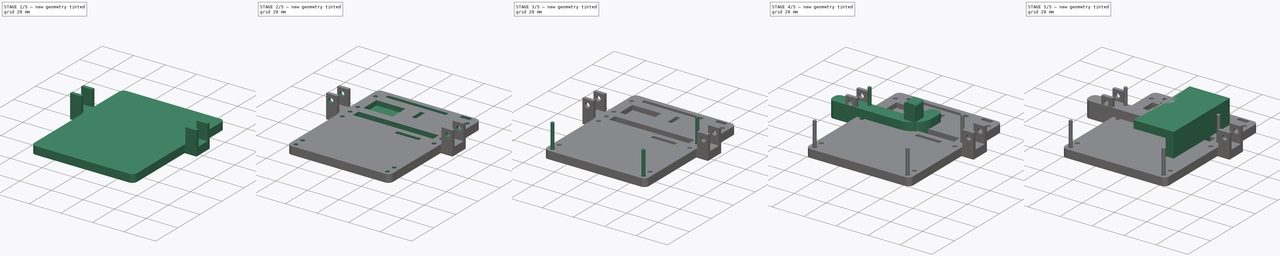
[diagram: build sequence overview — one tinted view per stage of 5, left to right]
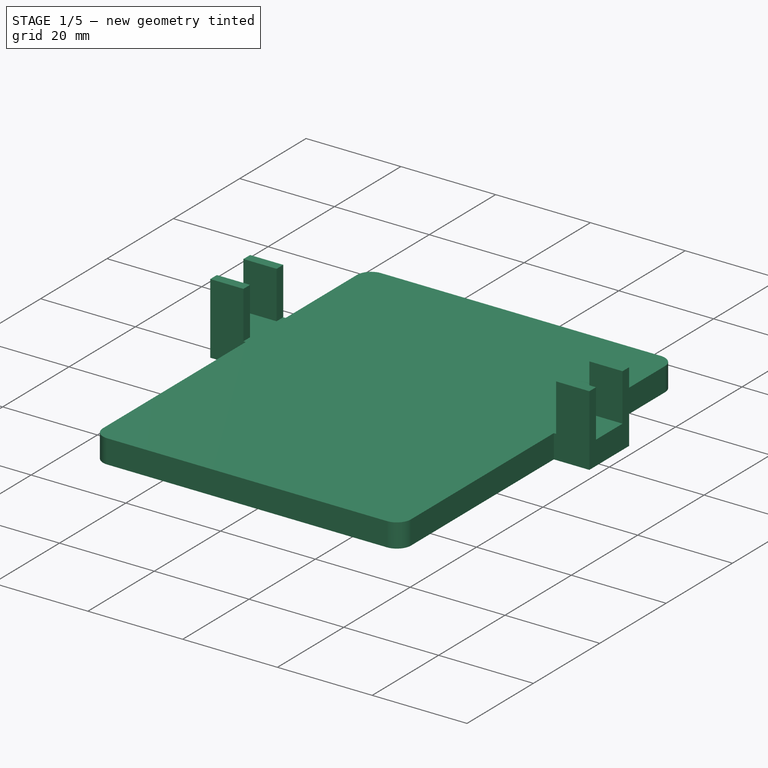
[diagram: stage 1 of 5 — iso view after this stage's code; geometry added in this stage tinted green]
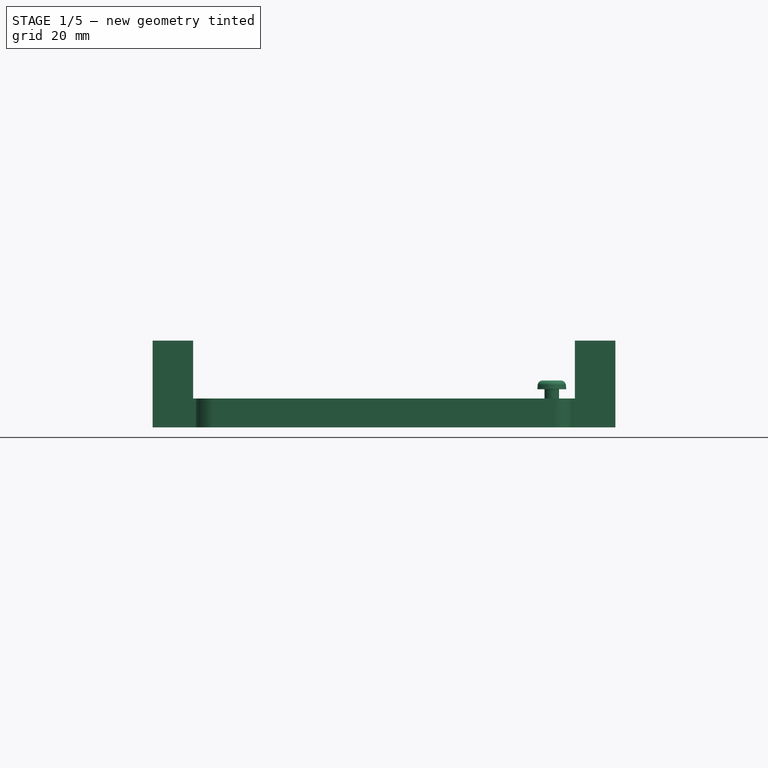
[diagram: stage 1 of 5 — front view after this stage's code; geometry added in this stage tinted green]
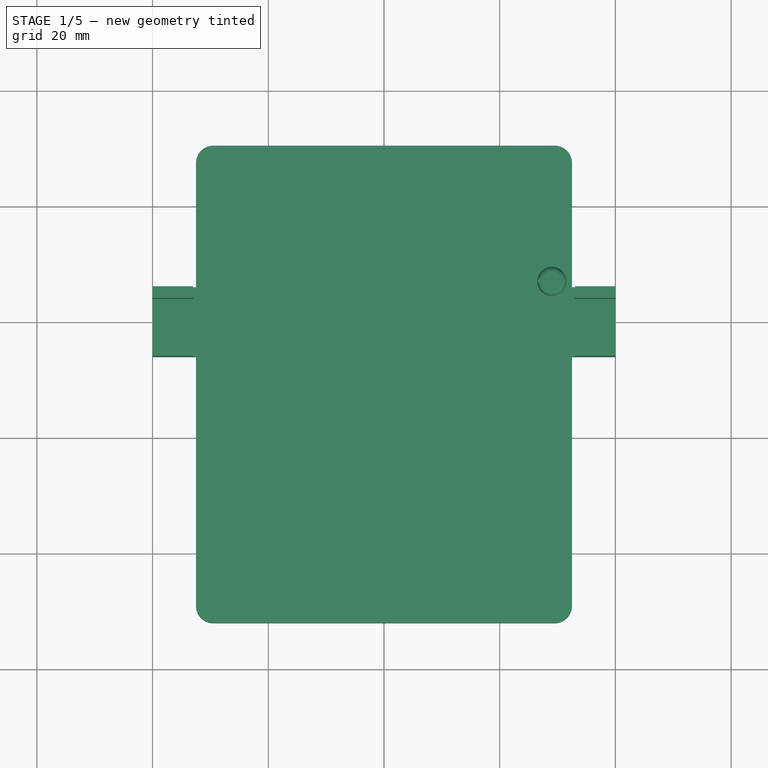
[diagram: stage 1 of 5 — top view after this stage's code; geometry added in this stage tinted green]
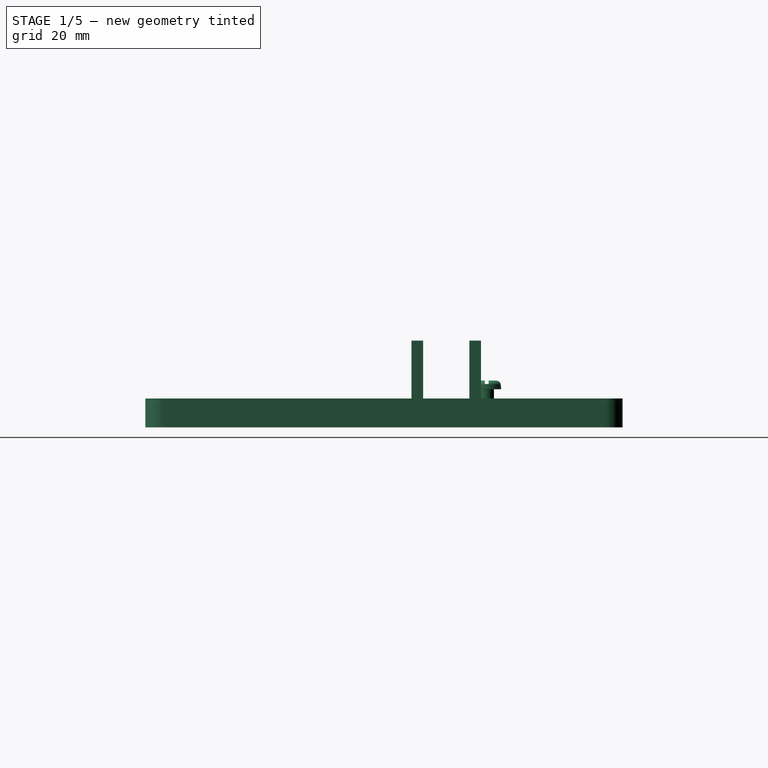
[diagram: stage 1 of 5 — right view after this stage's code; geometry added in this stage tinted green]
FCSTD DOCUMENT  (FreeCAD 0.18.3R)
Label: b3jig
License: All rights reserved
LicenseURL: http://en.wikipedia.org/wiki/All_rights_reserved
objects: Sketcher::SketchObject×14, PartDesign::Pocket×9, Part::FeaturePython×6, PartDesign::Pad×5, PartDesign::Body×4, App::Part×2, App::VRMLObject×2
note: 52 computed .brp shape members not serialized (recipe doc carries the construction recipe); baked Part::Feature solids carry a one-line shape summary decoded from their .brp

FEATURE [PartDesign::Body] Body  label="Lever"
  Group = -> [Sketch,Pad,Sketch004,Pocket002]
  Origin = -> Origin001
  Tip = -> Pocket002
FEATURE [App::Part] Part
  Group = -> [Body,Body001]
  Origin = -> Origin
FEATURE [App::VRMLObject] pitail
  Placement = pos=(-104.89,76.39,9.3) rot=(0,0,1;0rad)
  Resources = pitail/shapes3D/LED_0603.wrl | pitail/shapes3D/SOIC-8_3.9x4.9mm_Pitch1.27mm.wrl | pitail/shapes3D/R_0603.wrl | pitail/shapes3D/C_0603.wrl | pitail/shapes3D/SOT-23-5.wrl | pitail/shapes3D/Pin_Header_Straight_1x02_Pitch2.54mm.wrl
FEATURE [Sketcher::SketchObject] Sketch005
  sketch-geometry (16):
    g0: LineSegment StartX=-29.5 StartY=30.49 StartZ=0 EndX=29.5 EndY=30.49 EndZ=0
    g1: LineSegment StartX=32.5 StartY=27.49 StartZ=0 EndX=32.5 EndY=6 EndZ=0
    g2: LineSegment StartX=29.5 StartY=-52.01 StartZ=0 EndX=-29.5 EndY=-52.01 EndZ=0
    g3: LineSegment StartX=-32.5 StartY=-49.01 StartZ=0 EndX=-32.5 EndY=-6 EndZ=0
    g4: LineSegment StartX=32.5 StartY=6 StartZ=0 EndX=40 EndY=6 EndZ=0
    g5: LineSegment StartX=40 StartY=6 StartZ=0 EndX=40 EndY=-6 EndZ=0
    g6: LineSegment StartX=40 StartY=-6 StartZ=0 EndX=32.5 EndY=-6 EndZ=0
    g7: LineSegment StartX=-32.5 StartY=6 StartZ=0 EndX=-40 EndY=6 EndZ=0
    g8: LineSegment StartX=-40 StartY=6 StartZ=0 EndX=-40 EndY=-6 EndZ=0
    g9: LineSegment StartX=-40 StartY=-6 StartZ=0 EndX=-32.5 EndY=-6 EndZ=0
    g10: LineSegment StartX=32.5 StartY=-6 StartZ=0 EndX=32.5 EndY=-49.01 EndZ=0
    g11: LineSegment StartX=-32.5 StartY=6 StartZ=0 EndX=-32.5 EndY=27.49 EndZ=0
    g12: ArcOfCircle CenterX=-29.5 CenterY=27.49 CenterZ=0 NormalX=0 NormalY=0 NormalZ=1 AngleXU=0 Radius=3 StartAngle=1.5708 EndAngle=3.14159
    g13: ArcOfCircle CenterX=29.5 CenterY=27.49 CenterZ=0 NormalX=0 NormalY=0 NormalZ=1 AngleXU=0 Radius=3 StartAngle=1e-16 EndAngle=1.5708
    g14: ArcOfCircle CenterX=29.5 CenterY=-49.01 CenterZ=0 NormalX=0 NormalY=0 NormalZ=1 AngleXU=0 Radius=3 StartAngle=4.71239 EndAngle=6.28319
    g15: ArcOfCircle CenterX=-29.5 CenterY=-49.01 CenterZ=0 NormalX=0 NormalY=0 NormalZ=1 AngleXU=0 Radius=3 StartAngle=3.14159 EndAngle=4.71239
  constraints (40):
    c: Horizontal(g0)
    c: Vertical(g1)
    c: Vertical(g3)
    c: Horizontal(g4)
    c: Horizontal(g6)
    c: Coincident(g5,g4)
    c: Coincident(g5,g6)
    c: Symmetric(g5,g4,g-1)
    c: Horizontal(g7)
    c: Vertical(g8)
    c: Horizontal(g9)
    c: Coincident(g9,g8)
    c: Coincident(g7,g8)
    c: Equal(g6,g9)
    c: Equal(g5,g8)
    c: Horizontal(g4,g7)
    c: Coincident(g1,g4)
    c: Coincident(g10,g6)
    c: Tangent(g1,g10)
    c: Coincident(g3,g9)
    c: Coincident(g11,g7)
    c: Tangent(g3,g11)
    c: DistanceY(g5,g5) = 12
    c: DistanceX(g6,g6) = 7.5
    c: Tangent(g0,g12) = 1.5708
    c: Tangent(g11,g12) = 1.5708
    c: Tangent(g0,g13) = 1.5708
    c: Tangent(g1,g13) = 1.5708
    c: Tangent(g10,g14) = 1.5708
    c: Tangent(g2,g14) = 1.5708
    c: Tangent(g3,g15) = 1.5708
    c: Tangent(g2,g15) = 1.5708
    c: Equal(g12,g13)
    c: Equal(g14,g15)
    c: Radius(g13) = 3
    c: DistanceY(g2,g0) = 82.5
    c: Symmetric(g2,g2,g-2)
    c: DistanceY(g2) = -52.01
    c: DistanceX(g11,g1) = 65
    c: Equal(g13,g14)
FEATURE [PartDesign::Pad] Pad002
  Length = 5
  Length2 = 100
  Profile = -> Sketch005
  Type = 0
FEATURE [Sketcher::SketchObject] Sketch006
  MapMode = 5
  Placement = pos=(0,0,5) rot=(0,0,1;0rad)
  Support = -> [Pad002]
  sketch-geometry (16):
    g0: LineSegment StartX=-40 StartY=6 StartZ=0 EndX=-33 EndY=6 EndZ=0
    g1: LineSegment StartX=-33 StartY=6 StartZ=0 EndX=-33 EndY=4 EndZ=0
    g2: LineSegment StartX=-33 StartY=4 StartZ=0 EndX=-40 EndY=4 EndZ=0
    g3: LineSegment StartX=-40 StartY=4 StartZ=0 EndX=-40 EndY=6 EndZ=0
    g4: LineSegment StartX=-40 StartY=-4 StartZ=0 EndX=-33 EndY=-4 EndZ=0
    g5: LineSegment StartX=-33 StartY=-4 StartZ=0 EndX=-33 EndY=-6 EndZ=0
    g6: LineSegment StartX=-33 StartY=-6 StartZ=0 EndX=-40 EndY=-6 EndZ=0
    g7: LineSegment StartX=-40 StartY=-6 StartZ=0 EndX=-40 EndY=-4 EndZ=0
    g8: LineSegment StartX=33 StartY=6 StartZ=0 EndX=40 EndY=6 EndZ=0
    g9: LineSegment StartX=40 StartY=6 StartZ=0 EndX=40 EndY=4 EndZ=0
    g10: LineSegment StartX=40 StartY=4 StartZ=0 EndX=33 EndY=4 EndZ=0
    g11: LineSegment StartX=33 StartY=4 StartZ=0 EndX=33 EndY=6 EndZ=0
    g12: LineSegment StartX=33 StartY=-4 StartZ=0 EndX=40 EndY=-4 EndZ=0
    g13: LineSegment StartX=40 StartY=-4 StartZ=0 EndX=40 EndY=-6 EndZ=0
    g14: LineSegment StartX=40 StartY=-6 StartZ=0 EndX=33 EndY=-6 EndZ=0
    g15: LineSegment StartX=33 StartY=-6 StartZ=0 EndX=33 EndY=-4 EndZ=0
  constraints (45):
    c: Coincident(g0,g1)
    c: Coincident(g1,g2)
    c: Coincident(g2,g3)
    c: Coincident(g3,g0)
    c: Horizontal(g0)
    c: Horizontal(g2)
    c: Vertical(g1)
    c: Vertical(g3)
    c: Coincident(g4,g5)
    c: Coincident(g5,g6)
    c: Coincident(g6,g7)
    c: Coincident(g7,g4)
    c: Horizontal(g4)
    c: Horizontal(g6)
    c: Vertical(g5)
    c: Vertical(g7)
    c: Coincident(g8,g9)
    c: Coincident(g9,g10)
    c: Coincident(g10,g11)
    c: Coincident(g11,g8)
    c: Horizontal(g8)
    c: Horizontal(g10)
    c: Vertical(g9)
    c: Vertical(g11)
    c: Coincident(g12,g13)
    c: Coincident(g13,g14)
    c: Coincident(g14,g15)
    c: Coincident(g15,g12)
    c: Horizontal(g12)
    c: Horizontal(g14)
    c: Vertical(g13)
    c: Vertical(g15)
    c: Equal(g3,g7)
    c: Equal(g9,g3)
    c: Equal(g9,g13)
    c: Vertical(g10,g12)
    c: Symmetric(g9,g12,g-1)
    c: Equal(g10,g2)
    c: Vertical(g4,g2)
    c: Symmetric(g4,g1,g-1)
    c: Symmetric(g1,g10,g-2)
    c: DistanceX(g8) = 33
    c: DistanceX(g8,g8) = 7
    c: DistanceY(g13,g13) = 2
    c: DistanceY(g8) = 6
FEATURE [PartDesign::Pad] Pad003
  BaseFeature = -> Pad002
  Length = 10
  Length2 = 100
  Profile = -> Sketch006
  Type = 0
FEATURE [PartDesign::Body] Body002  label="JigBody"
  Group = -> [Sketch005,Pad002,Sketch006,Pad003,Sketch007,Pocket003,Sketch008,Pocket004,Sketch011,Pocket006,Sketch012,Pocket007,Sketch013,Pocket008]
  Origin = -> Origin005
  Tip = -> Pocket008
FEATURE [Part::FeaturePython] Nut  label="M2.5-Nut"  # Fasteners workbench fastener (typed FeaturePython)
  Placement = pos=(29,7,0.6) rot=(0,0,1;0.523599rad)
  diameter = 3
  invert = false
  matchOuter = false
  offset = 0
  thread = false
  type = 4
FEATURE [Part::FeaturePython] Screw  label="M2.5x6-Screw"  # Fasteners workbench fastener (typed FeaturePython)
  Placement = pos=(29,7,6.6) rot=(0,0,1;0rad)
  diameter = 3
  invert = false
  length = 2
  matchOuter = false
  offset = 0
  thread = false
  type = 10
FEATURE [App::VRMLObject] jigb3001  label="jigb3"
  Placement = pos=(-104.89,76.39,0.8) rot=(0,0,1;0rad)
  Resources = jigb3001/shapes3D/CP_Radial_D5.0mm_P2.00mm.wrl | jigb3001/shapes3D/C_Disc_D5.0mm_W2.5mm_P5.00mm.wrl | jigb3001/shapes3D/Pin_Header_Angled_1x05_Pitch2.54mm.wrl | jigb3001/shapes3D/Pin_Header_Angled_1x03_Pitch2.54mm.wrl | jigb3001/shapes3D/Pin_Header_Angled_2x05_Pitch1.27mm.wrl | jigb3001/shapes3D/Pin_Header_Straight_2x20_Pitch2.54mm.wrl | jigb3001/shapes3D/R_Axial_DIN0204_L3.6mm_D1.6mm_P5.08mm_Horizontal.wrl | jigb3001/shapes3D/DIP-8_W7.62mm.wrl | jigb3001/shapes3D/pogopin.wrl
FEATURE [App::Part] Part003  label="PCBs"
  Group = -> [pitail,jigb3001]
  Origin = -> Origin006
  Placement = pos=(0,0,5) rot=(0,0,1;0rad)
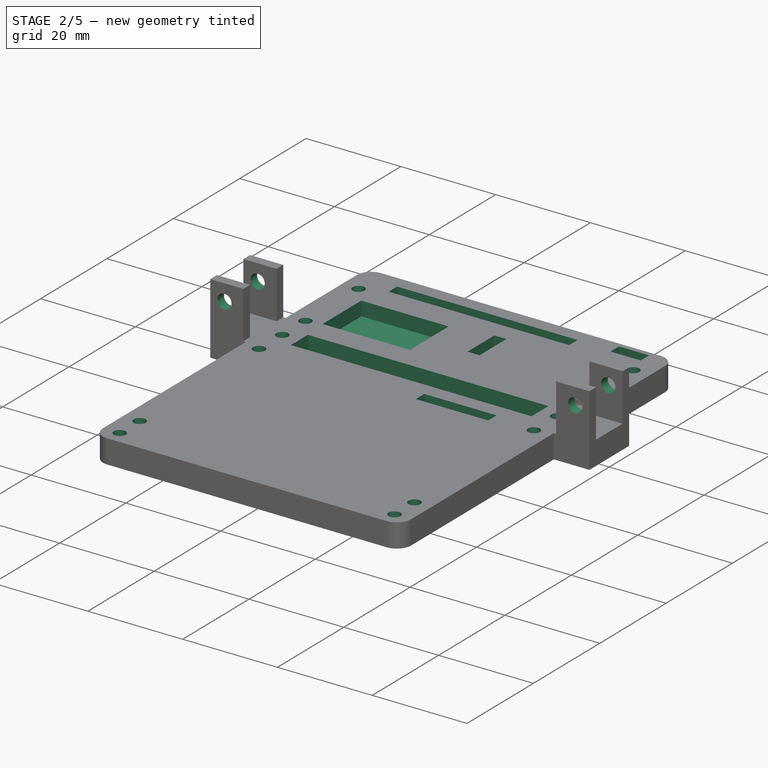
[diagram: stage 2 of 5 — iso view after this stage's code; geometry added in this stage tinted green]
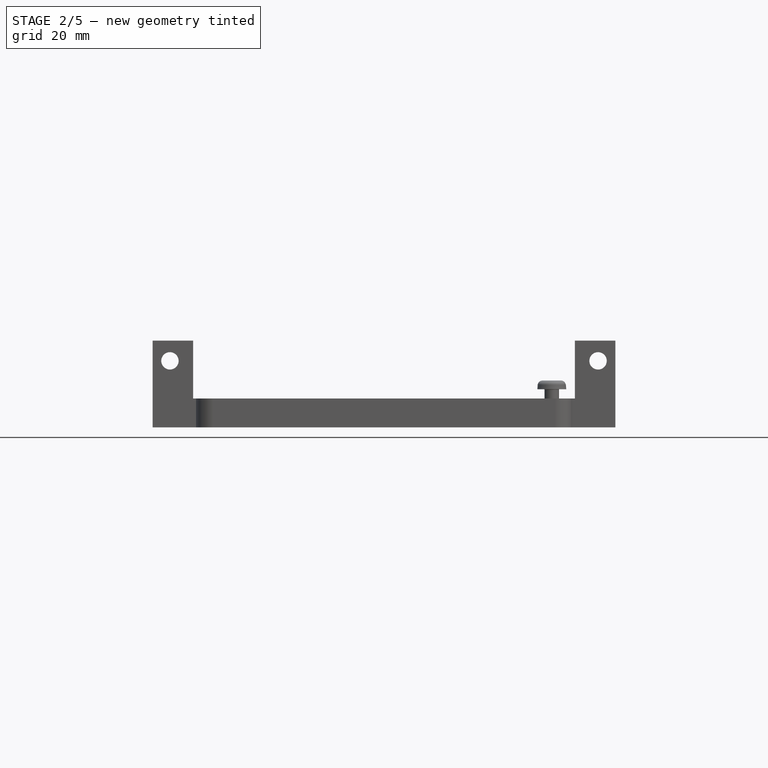
[diagram: stage 2 of 5 — front view after this stage's code; geometry added in this stage tinted green]
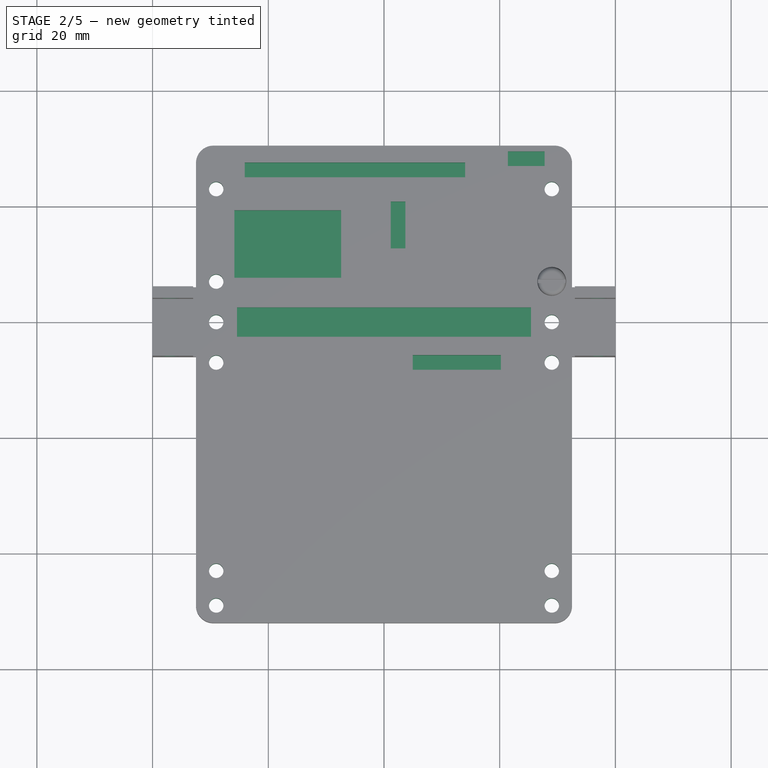
[diagram: stage 2 of 5 — top view after this stage's code; geometry added in this stage tinted green]
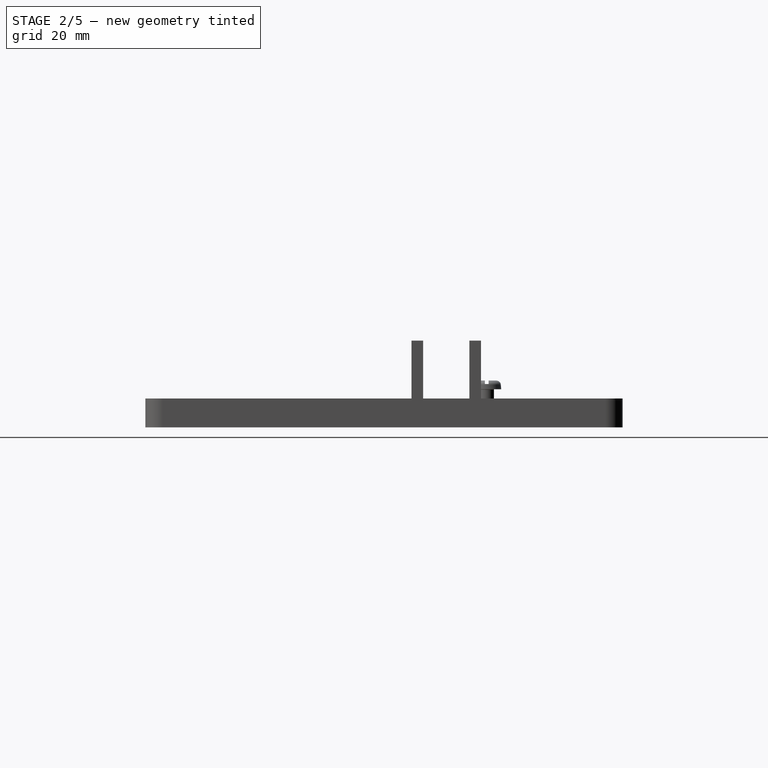
[diagram: stage 2 of 5 — right view after this stage's code; geometry added in this stage tinted green]
FEATURE [Sketcher::SketchObject] Sketch007
  MapMode = 5
  Placement = pos=(0,6,0) rot=(0,0.707107,0.707107;3.14159rad)
  Support = -> [Pad003]
  sketch-geometry (2):
    g0: Circle CenterX=-37 CenterY=11.5 CenterZ=0 NormalX=0 NormalY=0 NormalZ=1 AngleXU=0 Radius=1.5
    g1: Circle CenterX=37 CenterY=11.5 CenterZ=0 NormalX=0 NormalY=0 NormalZ=1 AngleXU=0 Radius=1.5
  constraints (5):
    c: Symmetric(g0,g1,g-2)
    c: Equal(g0,g1)
    c: Diameter(g0) = 3
    c: DistanceY(g0) = 11.5
    c: DistanceX(g0) = -37
FEATURE [PartDesign::Pocket] Pocket003
  BaseFeature = -> Pad003
  Length = 5
  Length2 = 100
  Profile = -> Sketch007
  Type = 1
FEATURE [Sketcher::SketchObject] Sketch008
  MapMode = 5
  Placement = pos=(0,0,5) rot=(0,0,1;0rad)
  Support = -> [Pocket003]
  sketch-geometry (24):
    g0: LineSegment StartX=-25.4 StartY=2.54 StartZ=0 EndX=25.4 EndY=2.54 EndZ=0
    g1: LineSegment StartX=25.4 StartY=2.54 StartZ=0 EndX=25.4 EndY=-2.54 EndZ=0
    g2: LineSegment StartX=25.4 StartY=-2.54 StartZ=0 EndX=-25.4 EndY=-2.54 EndZ=0
    g3: LineSegment StartX=-25.4 StartY=-2.54 StartZ=0 EndX=-25.4 EndY=2.54 EndZ=0
    g4: LineSegment StartX=4.96515 StartY=-5.71077 StartZ=0 EndX=20.2052 EndY=-5.71077 EndZ=0
    g5: LineSegment StartX=20.2052 StartY=-5.71077 StartZ=0 EndX=20.2052 EndY=-8.25077 EndZ=0
    g6: LineSegment StartX=20.2052 StartY=-8.25077 StartZ=0 EndX=4.96515 EndY=-8.25077 EndZ=0
    g7: LineSegment StartX=4.96515 StartY=-8.25077 StartZ=0 EndX=4.96515 EndY=-5.71077 EndZ=0
    g8: LineSegment StartX=21.4049 StartY=29.5074 StartZ=0 EndX=27.7549 EndY=29.5074 EndZ=0
    g9: LineSegment StartX=27.7549 StartY=29.5074 StartZ=0 EndX=27.7549 EndY=26.9674 EndZ=0
    g10: LineSegment StartX=27.7549 StartY=26.9674 StartZ=0 EndX=21.4049 EndY=26.9674 EndZ=0
    g11: LineSegment StartX=21.4049 StartY=26.9674 StartZ=0 EndX=21.4049 EndY=29.5074 EndZ=0
    g12: LineSegment StartX=-25.8549 StartY=19.3139 StartZ=0 EndX=-7.41586 EndY=19.3139 EndZ=0
    g13: LineSegment StartX=-7.41586 StartY=19.3139 StartZ=0 EndX=-7.41586 EndY=7.64394 EndZ=0
    g14: LineSegment StartX=-7.41586 StartY=7.64394 StartZ=0 EndX=-25.8549 EndY=7.64394 EndZ=0
    g15: LineSegment StartX=-25.8549 StartY=7.64394 StartZ=0 EndX=-25.8549 EndY=19.3139 EndZ=0
    g16: LineSegment StartX=-24.0715 StartY=27.5668 StartZ=0 EndX=14.0285 EndY=27.5668 EndZ=0
    g17: LineSegment StartX=14.0285 StartY=27.5668 StartZ=0 EndX=14.0285 EndY=25.0268 EndZ=0
    g18: LineSegment StartX=14.0285 StartY=25.0268 StartZ=0 EndX=-24.0715 EndY=25.0268 EndZ=0
    g19: LineSegment StartX=-24.0715 StartY=25.0268 StartZ=0 EndX=-24.0715 EndY=27.5668 EndZ=0
    g20: LineSegment StartX=3.70438 StartY=20.8426 StartZ=0 EndX=1.16438 EndY=20.8426 EndZ=0
    g21: LineSegment StartX=1.16438 StartY=20.8426 StartZ=0 EndX=1.16438 EndY=12.7406 EndZ=0
    g22: LineSegment StartX=1.16438 StartY=12.7406 StartZ=0 EndX=3.70438 EndY=12.7406 EndZ=0
    g23: LineSegment StartX=3.70438 StartY=12.7406 StartZ=0 EndX=3.70438 EndY=20.8426 EndZ=0
  constraints (70):
    c: Coincident(g0,g1)
    c: Coincident(g1,g2)
    c: Coincident(g2,g3)
    c: Coincident(g3,g0)
    c: Horizontal(g2)
    c: Vertical(g1)
    c: Coincident(g4,g5)
    c: Coincident(g5,g6)
    c: Coincident(g6,g7)
    c: Coincident(g7,g4)
    c: Horizontal(g4)
    c: Horizontal(g6)
    c: Vertical(g5)
    c: Vertical(g7)
    c: Symmetric(g2,g0,g-1)
    c: DistanceY(g1,g1) = 5.08
    c: DistanceY(g5,g5) = 2.54
    c: DistanceX(g6,g6) = 15.24
    c: DistanceX(g6) = 4.96516
    c: DistanceY(g6) = -8.25077
    c: Symmetric(g0,g0,g-2)
    c: DistanceX(g0,g0) = 50.8
    c: Coincident(g8,g9)
    c: Coincident(g9,g10)
    c: Coincident(g10,g11)
    c: Coincident(g11,g8)
    c: Horizontal(g8)
    c: Horizontal(g10)
    c: Vertical(g9)
    c: Vertical(g11)
    c: Coincident(g12,g13)
    c: Coincident(g13,g14)
    c: Coincident(g14,g15)
    c: Coincident(g15,g12)
    c: Horizontal(g12)
    c: Horizontal(g14)
    c: Vertical(g13)
    c: Vertical(g15)
    c: Coincident(g16,g17)
    c: Coincident(g17,g18)
    c: Coincident(g18,g19)
    c: Coincident(g19,g16)
    c: Horizontal(g16)
    c: Horizontal(g18)
    c: Vertical(g17)
    c: Vertical(g19)
    c: DistanceX(g8,g8) = 6.35
    c: DistanceY(g11,g11) = 2.54
    c: Coincident(g20,g21)
    c: Coincident(g21,g22)
    c: Coincident(g22,g23)
    c: Coincident(g23,g20)
    c: Horizontal(g20)
    c: Horizontal(g22)
    c: Vertical(g21)
    c: Vertical(g23)
    c: DistanceX(g22,g22) = 2.54
    c: DistanceY(g19,g19) = 2.54
    c: DistanceX(g18,g18) = 38.1
    c: DistanceX(g12) = -7.41586
    c: DistanceY(g12) = 19.3139
    c: DistanceX(g12,g12) = 18.439
    c: DistanceY(g15,g15) = 11.67
    c: DistanceY(g23,g23) = 8.102
    c: DistanceX(g20) = 3.70438
    c: DistanceY(g20) = 20.8426
    c: DistanceX(g8) = 21.4049
    c: DistanceY(g8) = 29.5074
    c: DistanceX(g17) = 14.0285
    c: DistanceY(g17) = 25.0268
FEATURE [PartDesign::Pocket] Pocket004
  BaseFeature = -> Pocket003
  Length = 3
  Length2 = 100
  Profile = -> Sketch008
  Type = 0
FEATURE [Sketcher::SketchObject] Sketch011
  MapMode = 5
  Placement = pos=(0,0,5) rot=(0,0,1;0rad)
  Support = -> [Pocket004]
  sketch-geometry (4):
    g0: Circle CenterX=-29 CenterY=0 CenterZ=0 NormalX=0 NormalY=0 NormalZ=1 AngleXU=0 Radius=1.25
    g1: Circle CenterX=29 CenterY=0 CenterZ=0 NormalX=0 NormalY=0 NormalZ=1 AngleXU=0 Radius=1.25
    g2: Circle CenterX=-29 CenterY=-49 CenterZ=0 NormalX=0 NormalY=0 NormalZ=1 AngleXU=0 Radius=1.25
    g3: Circle CenterX=29 CenterY=-49 CenterZ=0 NormalX=0 NormalY=0 NormalZ=1 AngleXU=0 Radius=1.25
  constraints (11):
    c: Diameter(g0) = 2.5
    c: Equal(g0,g1)
    c: Equal(g0,g2)
    c: Equal(g0,g3)
    c: DistanceX(g0) = -29
    c: Symmetric(g1,g0,g-2)
    c: Horizontal(g2,g3)
    c: Vertical(g1,g3)
    c: Vertical(g0,g2)
    c: PointOnObject(g0,g-1)
    c: DistanceY(g2) = -49
FEATURE [PartDesign::Pocket] Pocket006
  BaseFeature = -> Pocket004
  Length = 5
  Length2 = 100
  Profile = -> Sketch011
  Type = 0
FEATURE [Sketcher::SketchObject] Sketch012
  MapMode = 5
  Placement = pos=(0,0,5) rot=(0,0,1;0rad)
  Support = -> [Pocket006]
  sketch-geometry (8):
    g0: Circle CenterX=-29 CenterY=7 CenterZ=0 NormalX=0 NormalY=0 NormalZ=1 AngleXU=0 Radius=1.25
    g1: Circle CenterX=29 CenterY=7 CenterZ=0 NormalX=0 NormalY=0 NormalZ=1 AngleXU=0 Radius=1.25
    g2: Circle CenterX=29 CenterY=-43 CenterZ=0 NormalX=0 NormalY=0 NormalZ=1 AngleXU=0 Radius=1.25
    g3: Circle CenterX=-29 CenterY=-43 CenterZ=0 NormalX=0 NormalY=0 NormalZ=1 AngleXU=0 Radius=1.25
    g4: Circle CenterX=-29 CenterY=22.99 CenterZ=0 NormalX=0 NormalY=0 NormalZ=1 AngleXU=0 Radius=1.25
    g5: Circle CenterX=29 CenterY=22.99 CenterZ=0 NormalX=0 NormalY=0 NormalZ=1 AngleXU=0 Radius=1.25
    g6: Circle CenterX=-29 CenterY=-7 CenterZ=0 NormalX=0 NormalY=0 NormalZ=1 AngleXU=0 Radius=1.25
    g7: Circle CenterX=29 CenterY=-7 CenterZ=0 NormalX=0 NormalY=0 NormalZ=1 AngleXU=0 Radius=1.25
  constraints (23):
    c: Diameter(g0) = 2.5
    c: Equal(g0,g4)
    c: Equal(g0,g5)
    c: Equal(g0,g1)
    c: Equal(g0,g2)
    c: Equal(g0,g3)
    c: Vertical(g0,g4)
    c: Vertical(g4,g3)
    c: Vertical(g2,g1)
    c: Vertical(g1,g5)
    c: Equal(g6,g7)
    c: Equal(g7,g0)
    c: Vertical(g6,g4)
    c: Vertical(g1,g7)
    c: Horizontal(g4,g5)
    c: Horizontal(g0,g1)
    c: Horizontal(g3,g2)
    c: DistanceX(g6,g7) = 58
    c: Symmetric(g7,g6,g-2)
    c: DistanceY(g0) = 7
    c: DistanceY(g6) = -7
    c: DistanceY(g3,g6) = 36
    c: DistanceY(g0,g4) = 15.99
FEATURE [PartDesign::Pocket] Pocket007
  BaseFeature = -> Pocket006
  Length = 5
  Length2 = 100
  Profile = -> Sketch012
  Type = 1
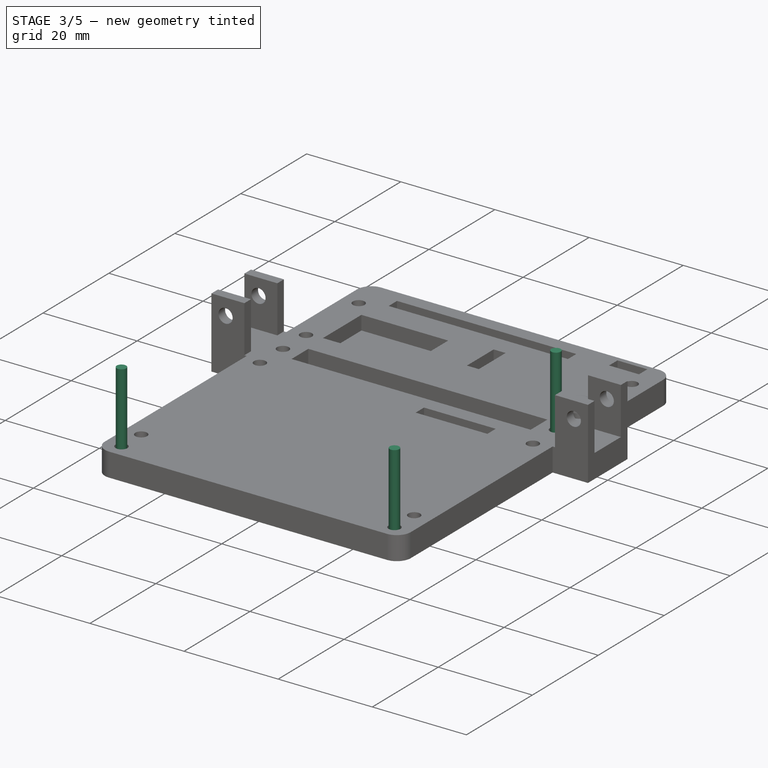
[diagram: stage 3 of 5 — iso view after this stage's code; geometry added in this stage tinted green]
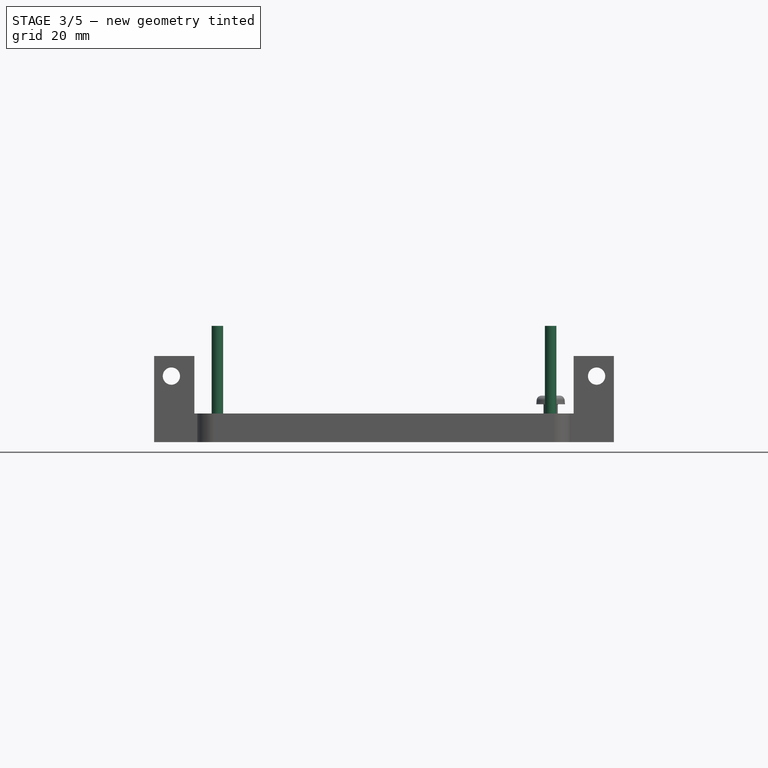
[diagram: stage 3 of 5 — front view after this stage's code; geometry added in this stage tinted green]
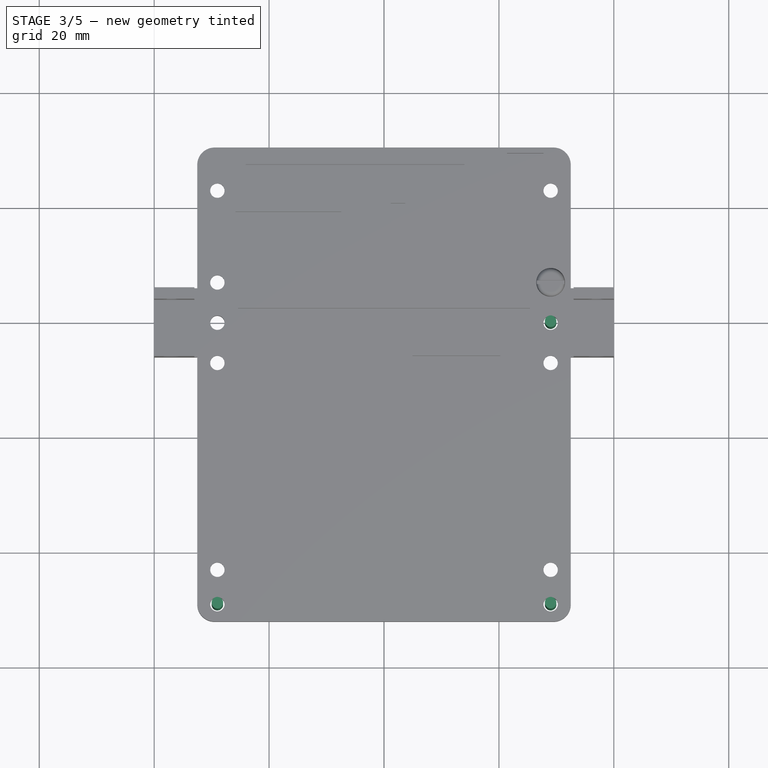
[diagram: stage 3 of 5 — top view after this stage's code; geometry added in this stage tinted green]
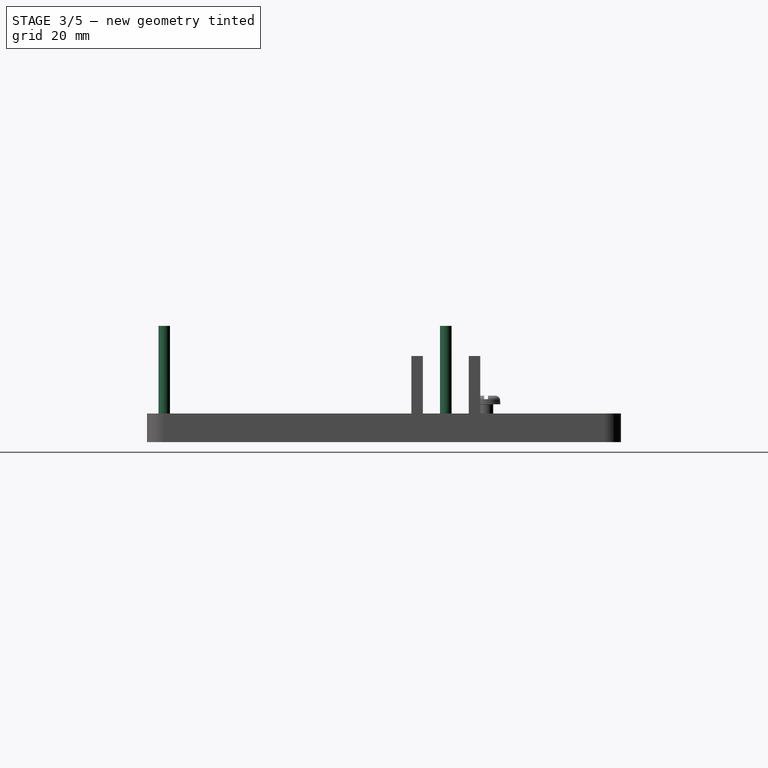
[diagram: stage 3 of 5 — right view after this stage's code; geometry added in this stage tinted green]
FEATURE [Part::FeaturePython] ScrewTap001  label="M2.5x20.0-ScrewTap004"  # Fasteners workbench fastener (typed FeaturePython)
  Placement = pos=(29,0,20) rot=(0,0,1;0rad)
  diameter = 3
  invert = false
  length = 20
  matchOuter = false
  offset = 0
  thread = false
FEATURE [Part::FeaturePython] ScrewTap002  label="M2.5x20.0-ScrewTap006"  # Fasteners workbench fastener (typed FeaturePython)
  Placement = pos=(-29,-49,20) rot=(0,0,1;0rad)
  diameter = 3
  invert = false
  length = 20
  matchOuter = false
  offset = 0
  thread = false
FEATURE [Part::FeaturePython] ScrewTap003  label="M2.5x20.0-ScrewTap007"  # Fasteners workbench fastener (typed FeaturePython)
  Placement = pos=(29,-49,20) rot=(0,0,1;0rad)
  diameter = 3
  invert = false
  length = 20
  matchOuter = false
  offset = 0
  thread = false
FEATURE [Sketcher::SketchObject] Sketch013
  AttachmentOffset = pos=(0,0,-5) rot=(0,0,1;0rad)
  MapMode = 5
  Support = -> [Pocket006]
  sketch-geometry (64):
    g0: Circle [constr] CenterX=-29 CenterY=7 CenterZ=0 NormalX=0 NormalY=0 NormalZ=1 AngleXU=0 Radius=1.25
    g1: Circle [constr] CenterX=29 CenterY=7 CenterZ=0 NormalX=0 NormalY=0 NormalZ=1 AngleXU=0 Radius=1.25
    g2: Circle [constr] CenterX=29 CenterY=-43 CenterZ=0 NormalX=0 NormalY=0 NormalZ=1 AngleXU=0 Radius=1.25
    g3: Circle [constr] CenterX=-29 CenterY=-43 CenterZ=0 NormalX=0 NormalY=0 NormalZ=1 AngleXU=0 Radius=1.25
    g4: Circle [constr] CenterX=-29 CenterY=22.99 CenterZ=0 NormalX=0 NormalY=0 NormalZ=1 AngleXU=0 Radius=1.25
    g5: Circle [constr] CenterX=29 CenterY=22.99 CenterZ=0 NormalX=0 NormalY=0 NormalZ=1 AngleXU=0 Radius=1.25
    g6: Circle [constr] CenterX=-29 CenterY=-7 CenterZ=0 NormalX=0 NormalY=0 NormalZ=1 AngleXU=0 Radius=1.25
    g7: Circle [constr] CenterX=29 CenterY=-7 CenterZ=0 NormalX=0 NormalY=0 NormalZ=1 AngleXU=0 Radius=1.25
    g8: LineSegment StartX=-26.1132 StartY=21.3233 StartZ=0 EndX=-26.1132 EndY=24.6567 EndZ=0
    g9: LineSegment StartX=-26.1132 StartY=24.6567 StartZ=0 EndX=-29 EndY=26.3233 EndZ=0
    g10: LineSegment StartX=-29 StartY=26.3233 StartZ=0 EndX=-31.8868 EndY=24.6567 EndZ=0
    g11: LineSegment StartX=-31.8868 StartY=24.6567 StartZ=0 EndX=-31.8868 EndY=21.3233 EndZ=0
    g12: LineSegment StartX=-31.8868 StartY=21.3233 StartZ=0 EndX=-29 EndY=19.6567 EndZ=0
    g13: LineSegment StartX=-29 StartY=19.6567 StartZ=0 EndX=-26.1132 EndY=21.3233 EndZ=0
    g14: Circle [constr] CenterX=-29 CenterY=22.99 CenterZ=0 NormalX=0 NormalY=0 NormalZ=1 AngleXU=0 Radius=3.33333
    g15: LineSegment StartX=31.8868 StartY=21.3233 StartZ=0 EndX=31.8868 EndY=24.6567 EndZ=0
    g16: LineSegment StartX=31.8868 StartY=24.6567 StartZ=0 EndX=29 EndY=26.3233 EndZ=0
    g17: LineSegment StartX=29 StartY=26.3233 StartZ=0 EndX=26.1132 EndY=24.6567 EndZ=0
    g18: LineSegment StartX=26.1132 StartY=24.6567 StartZ=0 EndX=26.1132 EndY=21.3233 EndZ=0
    g19: LineSegment StartX=26.1132 StartY=21.3233 StartZ=0 EndX=29 EndY=19.6567 EndZ=0
    g20: LineSegment StartX=29 StartY=19.6567 StartZ=0 EndX=31.8868 EndY=21.3233 EndZ=0
    g21: Circle [constr] CenterX=29 CenterY=22.99 CenterZ=0 NormalX=0 NormalY=0 NormalZ=1 AngleXU=0 Radius=3.33333
    g22: LineSegment StartX=-26.1132 StartY=5.33333 StartZ=0 EndX=-26.1132 EndY=8.66667 EndZ=0
    g23: LineSegment StartX=-26.1132 StartY=8.66667 StartZ=0 EndX=-29 EndY=10.3333 EndZ=0
    g24: LineSegment StartX=-29 StartY=10.3333 StartZ=0 EndX=-31.8868 EndY=8.66667 EndZ=0
    g25: LineSegment StartX=-31.8868 StartY=8.66667 StartZ=0 EndX=-31.8868 EndY=5.33333 EndZ=0
    g26: LineSegment StartX=-31.8868 StartY=5.33333 StartZ=0 EndX=-29 EndY=3.66667 EndZ=0
    g27: LineSegment StartX=-29 StartY=3.66667 StartZ=0 EndX=-26.1132 EndY=5.33333 EndZ=0
    g28: Circle [constr] CenterX=-29 CenterY=7 CenterZ=0 NormalX=0 NormalY=0 NormalZ=1 AngleXU=0 Radius=3.33333
    g29: LineSegment StartX=31.8868 StartY=5.33333 StartZ=0 EndX=31.8868 EndY=8.66667 EndZ=0
    g30: LineSegment StartX=31.8868 StartY=8.66667 StartZ=0 EndX=29 EndY=10.3333 EndZ=0
    g31: LineSegment StartX=29 StartY=10.3333 StartZ=0 EndX=26.1132 EndY=8.66667 EndZ=0
    g32: LineSegment StartX=26.1132 StartY=8.66667 StartZ=0 EndX=26.1132 EndY=5.33333 EndZ=0
    g33: LineSegment StartX=26.1132 StartY=5.33333 StartZ=0 EndX=29 EndY=3.66667 EndZ=0
    g34: LineSegment StartX=29 StartY=3.66667 StartZ=0 EndX=31.8868 EndY=5.33333 EndZ=0
    g35: Circle [constr] CenterX=29 CenterY=7 CenterZ=0 NormalX=0 NormalY=0 NormalZ=1 AngleXU=0 Radius=3.33333
    g36: LineSegment StartX=-26.1132 StartY=-8.66667 StartZ=0 EndX=-26.1132 EndY=-5.33333 EndZ=0
    g37: LineSegment StartX=-26.1132 StartY=-5.33333 StartZ=0 EndX=-29 EndY=-3.66667 EndZ=0
    g38: LineSegment StartX=-29 StartY=-3.66667 StartZ=0 EndX=-31.8868 EndY=-5.33333 EndZ=0
    g39: LineSegment StartX=-31.8868 StartY=-5.33333 StartZ=0 EndX=-31.8868 EndY=-8.66667 EndZ=0
    g40: LineSegment StartX=-31.8868 StartY=-8.66667 StartZ=0 EndX=-29 EndY=-10.3333 EndZ=0
    g41: LineSegment StartX=-29 StartY=-10.3333 StartZ=0 EndX=-26.1132 EndY=-8.66667 EndZ=0
    g42: Circle [constr] CenterX=-29 CenterY=-7 CenterZ=0 NormalX=0 NormalY=0 NormalZ=1 AngleXU=0 Radius=3.33333
    g43: LineSegment StartX=31.8868 StartY=-8.66667 StartZ=0 EndX=31.8868 EndY=-5.33333 EndZ=0
    g44: LineSegment StartX=31.8868 StartY=-5.33333 StartZ=0 EndX=29 EndY=-3.66667 EndZ=0
    g45: LineSegment StartX=29 StartY=-3.66667 StartZ=0 EndX=26.1132 EndY=-5.33333 EndZ=0
    g46: LineSegment StartX=26.1132 StartY=-5.33333 StartZ=0 EndX=26.1132 EndY=-8.66667 EndZ=0
    g47: LineSegment StartX=26.1132 StartY=-8.66667 StartZ=0 EndX=29 EndY=-10.3333 EndZ=0
    g48: LineSegment StartX=29 StartY=-10.3333 StartZ=0 EndX=31.8868 EndY=-8.66667 EndZ=0
    g49: Circle [constr] CenterX=29 CenterY=-7 CenterZ=0 NormalX=0 NormalY=0 NormalZ=1 AngleXU=0 Radius=3.33333
    g50: LineSegment StartX=-26.1132 StartY=-44.6667 StartZ=0 EndX=-26.1132 EndY=-41.3333 EndZ=0
    g51: LineSegment StartX=-26.1132 StartY=-41.3333 StartZ=0 EndX=-29 EndY=-39.6667 EndZ=0
    g52: LineSegment StartX=-29 StartY=-39.6667 StartZ=0 EndX=-31.8868 EndY=-41.3333 EndZ=0
    g53: LineSegment StartX=-31.8868 StartY=-41.3333 StartZ=0 EndX=-31.8868 EndY=-44.6667 EndZ=0
    g54: LineSegment StartX=-31.8868 StartY=-44.6667 StartZ=0 EndX=-29 EndY=-46.3333 EndZ=0
    g55: LineSegment StartX=-29 StartY=-46.3333 StartZ=0 EndX=-26.1132 EndY=-44.6667 EndZ=0
    g56: Circle [constr] CenterX=-29 CenterY=-43 CenterZ=0 NormalX=0 NormalY=0 NormalZ=1 AngleXU=0 Radius=3.33333
    g57: LineSegment StartX=31.8868 StartY=-44.6667 StartZ=0 EndX=31.8868 EndY=-41.3333 EndZ=0
    g58: LineSegment StartX=31.8868 StartY=-41.3333 StartZ=0 EndX=29 EndY=-39.6667 EndZ=0
    g59: LineSegment StartX=29 StartY=-39.6667 StartZ=0 EndX=26.1132 EndY=-41.3333 EndZ=0
    g60: LineSegment StartX=26.1132 StartY=-41.3333 StartZ=0 EndX=26.1132 EndY=-44.6667 EndZ=0
    g61: LineSegment StartX=26.1132 StartY=-44.6667 StartZ=0 EndX=29 EndY=-46.3333 EndZ=0
    g62: LineSegment StartX=29 StartY=-46.3333 StartZ=0 EndX=31.8868 EndY=-44.6667 EndZ=0
    g63: Circle [constr] CenterX=29 CenterY=-43 CenterZ=0 NormalX=0 NormalY=0 NormalZ=1 AngleXU=0 Radius=3.33333
  constraints (151):
    c: Diameter(g0) = 2.5
    c: Equal(g0,g4)
    c: Equal(g0,g5)
    c: Equal(g0,g1)
    c: Equal(g0,g2)
    c: Equal(g0,g3)
    c: Vertical(g0,g4)
    c: Vertical(g4,g3)
    c: Vertical(g2,g1)
    c: Vertical(g1,g5)
    c: Equal(g6,g7)
    c: Equal(g7,g0)
    c: Vertical(g6,g4)
    c: Vertical(g1,g7)
    c: Horizontal(g4,g5)
    c: Horizontal(g0,g1)
    c: Horizontal(g3,g2)
    c: DistanceX(g6,g7) = 58
    c: Symmetric(g7,g6,g-2)
    c: DistanceY(g0) = 7
    c: DistanceY(g6) = -7
    c: DistanceY(g3,g6) = 36
    c: DistanceY(g0,g4) = 15.99
    c: Coincident(g8,g9)
    c: Coincident(g9,g10)
    c: Coincident(g10,g11)
    c: Coincident(g11,g12)
    c: Coincident(g12,g13)
    c: Coincident(g13,g8)
    c: Equal(g8, g9-g13) x5
    c: PointOnObject(g8,g14)
    c: PointOnObject(g9,g14)
    c: PointOnObject(g10,g14)
    c: PointOnObject(g11,g14)
    c: PointOnObject(g12,g14)
    c: PointOnObject(g13,g14)
    c: Coincident(g15,g16)
    c: Coincident(g16,g17)
    c: Coincident(g17,g18)
    c: Coincident(g18,g19)
    c: Coincident(g19,g20)
    c: Coincident(g20,g15)
    c: Equal(g15, g16-g20) x5
    c: PointOnObject(g15,g21)
    c: PointOnObject(g16,g21)
    c: PointOnObject(g17,g21)
    c: PointOnObject(g18,g21)
    c: PointOnObject(g19,g21)
    c: PointOnObject(g20,g21)
    c: Coincident(g22,g23)
    c: Coincident(g23,g24)
    c: Coincident(g24,g25)
    c: Coincident(g25,g26)
    c: Coincident(g26,g27)
    c: Coincident(g27,g22)
    c: Equal(g22, g23-g27) x5
    c: PointOnObject(g22,g28)
    c: PointOnObject(g23,g28)
    c: PointOnObject(g24,g28)
    c: PointOnObject(g25,g28)
    c: PointOnObject(g26,g28)
    c: PointOnObject(g27,g28)
    c: Coincident(g29,g30)
    c: Coincident(g30,g31)
    c: Coincident(g31,g32)
    c: Coincident(g32,g33)
    c: Coincident(g33,g34)
    c: Coincident(g34,g29)
    c: Equal(g29, g30-g34) x5
    c: PointOnObject(g29,g35)
    c: PointOnObject(g30,g35)
    c: PointOnObject(g31,g35)
    c: PointOnObject(g32,g35)
    c: PointOnObject(g33,g35)
    c: PointOnObject(g34,g35)
    c: Coincident(g36,g37)
    c: Coincident(g37,g38)
    c: Coincident(g38,g39)
    c: Coincident(g39,g40)
    c: Coincident(g40,g41)
    c: Coincident(g41,g36)
    c: Equal(g36, g37-g41) x5
    c: PointOnObject(g36,g42)
    c: PointOnObject(g37,g42)
    c: PointOnObject(g38,g42)
    c: PointOnObject(g39,g42)
    c: PointOnObject(g40,g42)
    c: PointOnObject(g41,g42)
    c: Coincident(g43,g44)
    c: Coincident(g44,g45)
    c: Coincident(g45,g46)
    c: Coincident(g46,g47)
    c: Coincident(g47,g48)
    c: Coincident(g48,g43)
    c: Equal(g43, g44-g48) x5
    c: PointOnObject(g43,g49)
    c: PointOnObject(g44,g49)
    c: PointOnObject(g45,g49)
    c: PointOnObject(g46,g49)
    c: PointOnObject(g47,g49)
    c: PointOnObject(g48,g49)
    c: Coincident(g50,g51)
    c: Coincident(g51,g52)
    c: Coincident(g52,g53)
    c: Coincident(g53,g54)
    c: Coincident(g54,g55)
    c: Coincident(g55,g50)
    c: Equal(g50, g51-g55) x5
    c: PointOnObject(g50,g56)
    c: PointOnObject(g51,g56)
    c: PointOnObject(g52,g56)
    c: PointOnObject(g53,g56)
    c: PointOnObject(g54,g56)
    c: PointOnObject(g55,g56)
    c: Coincident(g57,g58)
    c: Coincident(g58,g59)
    c: Coincident(g59,g60)
    c: Coincident(g60,g61)
    c: Coincident(g61,g62)
    c: Coincident(g62,g57)
    c: Equal(g57, g58-g62) x5
    c: PointOnObject(g57,g63)
    c: PointOnObject(g58,g63)
    c: PointOnObject(g59,g63)
    c: PointOnObject(g60,g63)
    c: PointOnObject(g61,g63)
    c: PointOnObject(g62,g63)
    c: Equal(g58,g44)
    c: Equal(g44,g30)
    c: Equal(g30,g16)
    c: Equal(g16,g9)
    c: Equal(g9,g23)
    c: Equal(g23,g37)
    c: Equal(g37,g51)
    c: Coincident(g14,g4)
    c: Coincident(g28,g0)
    c: Coincident(g35,g1)
    c: Coincident(g7,g49)
    c: Coincident(g6,g42)
    c: Coincident(g3,g56)
    c: Coincident(g2,g63)
    c: DistanceY(g18,g16) = 5
    c: Coincident(g21,g5)
    c: Vertical(g11)
    c: Vertical(g25)
    c: Vertical(g39)
    c: Vertical(g46)
    c: Vertical(g32)
    c: Vertical(g18)
    c: Vertical(g53)
    c: Vertical(g60)
FEATURE [PartDesign::Pocket] Pocket008
  BaseFeature = -> Pocket007
  Length = 3
  Length2 = 100
  Profile = -> Sketch013
  Reversed = true
  Type = 0
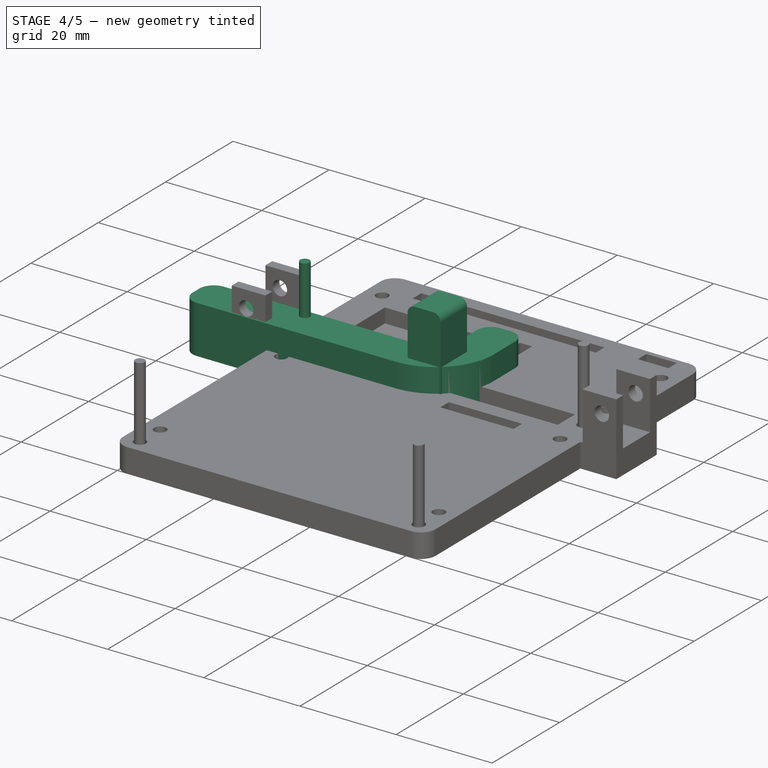
[diagram: stage 4 of 5 — iso view after this stage's code; geometry added in this stage tinted green]
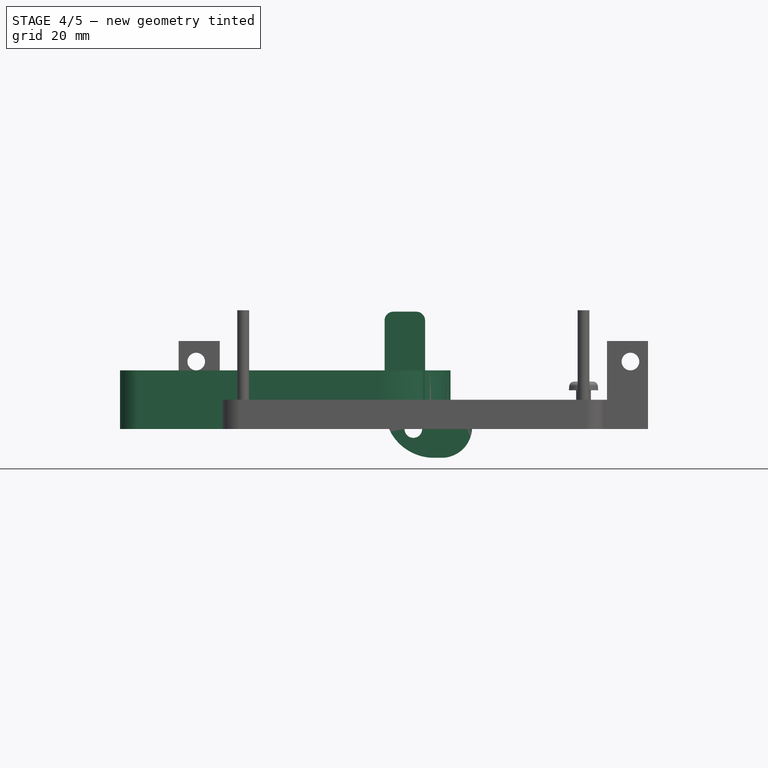
[diagram: stage 4 of 5 — front view after this stage's code; geometry added in this stage tinted green]
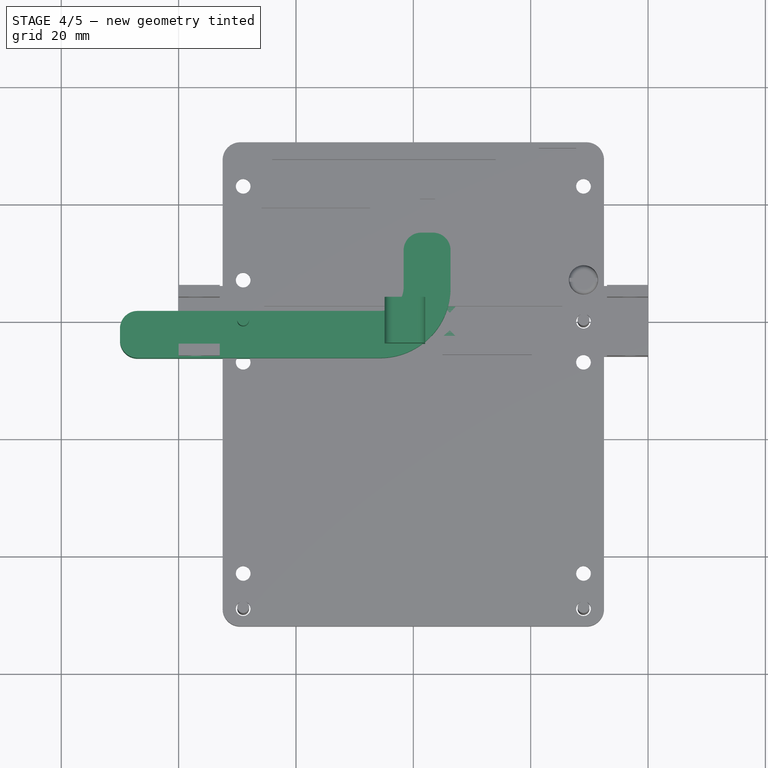
[diagram: stage 4 of 5 — top view after this stage's code; geometry added in this stage tinted green]
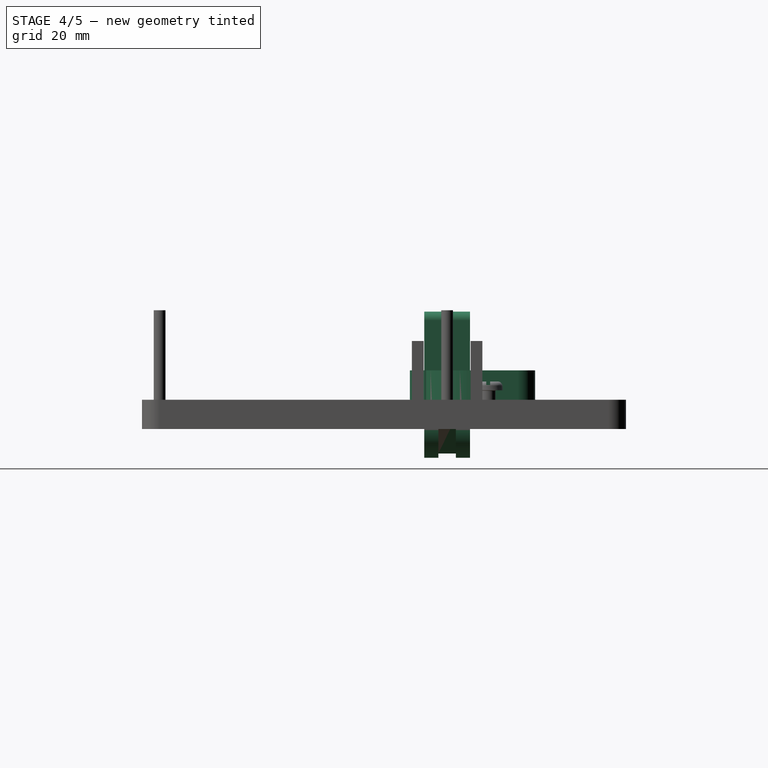
[diagram: stage 4 of 5 — right view after this stage's code; geometry added in this stage tinted green]
FEATURE [Sketcher::SketchObject] Sketch
  MapMode = 5
  Support = -> [XY_Plane001]
  sketch-geometry (15):
    g0: LineSegment StartX=-47 StartY=1.65685 StartZ=0 EndX=-5.65685 EndY=1.65685 EndZ=0
    g1: LineSegment StartX=6.34315 StartY=12 StartZ=0 EndX=6.34315 EndY=5.65685 EndZ=0
    g2: LineSegment StartX=-5.65685 StartY=-6.34315 StartZ=0 EndX=-47 EndY=-6.34315 EndZ=0
    g3: LineSegment StartX=-50 StartY=-3.34315 StartZ=0 EndX=-50 EndY=-1.34315 EndZ=0
    g4: LineSegment StartX=1.34315 StartY=15 StartZ=0 EndX=3.34315 EndY=15 EndZ=0
    g5: LineSegment StartX=-1.65685 StartY=5.65685 StartZ=0 EndX=-1.65685 EndY=12 EndZ=0
    g6: ArcOfCircle CenterX=-5.65685 CenterY=5.65685 CenterZ=0 NormalX=0 NormalY=0 NormalZ=1 AngleXU=0 Radius=4 StartAngle=4.71239 EndAngle=6.28319
    g7: ArcOfCircle CenterX=-5.65685 CenterY=5.65685 CenterZ=0 NormalX=0 NormalY=0 NormalZ=1 AngleXU=0 Radius=12 StartAngle=4.71239 EndAngle=6.28319
    g8: ArcOfCircle CenterX=1.34315 CenterY=12 CenterZ=0 NormalX=0 NormalY=0 NormalZ=1 AngleXU=0 Radius=3 StartAngle=1.5708 EndAngle=3.14159
    g9: ArcOfCircle CenterX=3.34315 CenterY=12 CenterZ=0 NormalX=0 NormalY=0 NormalZ=1 AngleXU=0 Radius=3 StartAngle=1e-16 EndAngle=1.5708
    g10: ArcOfCircle CenterX=-47 CenterY=-1.34315 CenterZ=0 NormalX=0 NormalY=0 NormalZ=1 AngleXU=0 Radius=3 StartAngle=1.5708 EndAngle=3.14159
    g11: ArcOfCircle CenterX=-47 CenterY=-3.34315 CenterZ=0 NormalX=0 NormalY=0 NormalZ=1 AngleXU=0 Radius=3 StartAngle=3.14159 EndAngle=4.71239
    g12: Circle CenterX=0 CenterY=0 CenterZ=0 NormalX=0 NormalY=0 NormalZ=1 AngleXU=0 Radius=1.5
    g13: LineSegment [constr] StartX=-5.65685 StartY=5.65685 StartZ=0 EndX=0 EndY=0 EndZ=0
    g14: GeomPoint X=-2.82843 Y=2.82843 Z=0
  constraints (35):
    c: Horizontal(g0)
    c: Horizontal(g2)
    c: Vertical(g1)
    c: Vertical(g3)
    c: Horizontal(g4)
    c: Vertical(g5)
    c: Tangent(g5,g6) = -1.5708
    c: Tangent(g0,g6) = -1.5708
    c: Tangent(g1,g7) = 1.5708
    c: Tangent(g2,g7) = 1.5708
    c: Tangent(g5,g8) = 1.5708
    c: Tangent(g4,g8) = 1.5708
    c: Tangent(g4,g9) = 1.5708
    c: Tangent(g1,g9) = 1.5708
    c: Tangent(g0,g10) = 1.5708
    c: Tangent(g3,g10) = 1.5708
    c: Tangent(g3,g11) = 1.5708
    c: Tangent(g2,g11) = 1.5708
    c: Equal(g10,g11)
    c: Equal(g11,g8)
    c: Equal(g8,g9)
    c: Diameter(g12) = 3
    c: DistanceY(g2,g0) = 8
    c: Radius(g6) = 4
    c: Radius(g10) = 3
    c: Coincident(g7,g6)
    c: Coincident(g13,g6)
    c: Coincident(g13,g12)
    c: Angle(g13) = -0.785398
    c: PointOnObject(g14,g6)
    c: PointOnObject(g14,g13)
    c: Distance(g14,g12) = 4
    c: DistanceX(g3,g12) = 50
    c: DistanceY(g12,g4) = 15
    c: Coincident(g12,g-1)
FEATURE [PartDesign::Pad] Pad
  Length = 10
  Length2 = 100
  Profile = -> Sketch
  Type = 0
FEATURE [Sketcher::SketchObject] Sketch009
  MapMode = 5
  Placement = pos=(0,0,0) rot=(1,0,0;1.5708rad)
  Support = -> [XZ_Plane007]
  sketch-geometry (16):
    g0: LineSegment StartX=-4.9 StartY=18.5 StartZ=0 EndX=-4.9 EndY=3.50061 EndZ=0
    g1: LineSegment StartX=8.50259 StartY=2 StartZ=0 EndX=3.50061 EndY=2 EndZ=0
    g2: LineSegment StartX=2 StartY=3.50061 StartZ=0 EndX=2 EndY=18.5 EndZ=0
    g3: LineSegment StartX=0.5 StartY=20 StartZ=0 EndX=-3.4 EndY=20 EndZ=0
    g4: LineSegment StartX=4.82519 StartY=-4.9 StartZ=0 EndX=3.50061 EndY=-4.9 EndZ=0
    g5: ArcOfCircle CenterX=0.5 CenterY=18.5 CenterZ=0 NormalX=0 NormalY=0 NormalZ=1 AngleXU=0 Radius=1.5 StartAngle=7e-16 EndAngle=1.5708
    g6: ArcOfCircle CenterX=-3.4 CenterY=18.5 CenterZ=0 NormalX=0 NormalY=0 NormalZ=1 AngleXU=0 Radius=1.5 StartAngle=1.5708 EndAngle=3.14159
    g7: ArcOfCircle CenterX=3.50061 CenterY=3.50061 CenterZ=0 NormalX=0 NormalY=0 NormalZ=1 AngleXU=0 Radius=1.50061 StartAngle=3.14159 EndAngle=4.71239
    g8: ArcOfCircle CenterX=8.50259 CenterY=0.5 CenterZ=0 NormalX=0 NormalY=0 NormalZ=1 AngleXU=0 Radius=1.5 StartAngle=0.058738 EndAngle=1.5708
    g9: ArcOfCircle CenterX=4.82519 CenterY=0.283748 CenterZ=0 NormalX=0 NormalY=0 NormalZ=1 AngleXU=0 Radius=5.18375 StartAngle=4.71239 EndAngle=6.34192
    g10: ArcOfCircle CenterX=3.50061 CenterY=3.50061 CenterZ=0 NormalX=0 NormalY=0 NormalZ=1 AngleXU=0 Radius=8.40061 StartAngle=3.14159 EndAngle=4.71239
    g11: Circle CenterX=0 CenterY=0 CenterZ=0 NormalX=0 NormalY=0 NormalZ=1 AngleXU=0 Radius=1.5
    g12: LineSegment [constr] StartX=-2.43952 StartY=-2.43952 StartZ=0 EndX=3.50061 EndY=3.50061 EndZ=0
    g13: GeomPoint X=2.43952 Y=2.43952 Z=0
    g14: LineSegment [constr] StartX=0 StartY=0 StartZ=0 EndX=10 EndY=0.588056 EndZ=0
    g15: LineSegment [constr] StartX=9.85324 StartY=3.08374 StartZ=0 EndX=10.1468 EndY=-1.90763 EndZ=0
  constraints (38):
    c: Vertical(g0)
    c: Horizontal(g1)
    c: Vertical(g2)
    c: Horizontal(g3)
    c: Horizontal(g4)
    c: Tangent(g3,g5) = -1.5708
    c: Tangent(g2,g5) = -1.5708
    c: Tangent(g3,g6) = -1.5708
    c: Tangent(g0,g6) = -1.5708
    c: Tangent(g2,g7) = 1.5708
    c: Tangent(g1,g7) = 1.5708
    c: Tangent(g1,g8) = -1.5708
    c: Tangent(g4,g9) = 1.5708
    c: Tangent(g4,g10) = 1.5708
    c: Tangent(g0,g10) = -1.5708
    c: Diameter(g11) = 3
    c: Coincident(g11,g-1)
    c: Equal(g5,g6)
    c: Equal(g5,g8)
    c: Radius(g8) = 1.5
    c: Coincident(g10,g7)
    c: PointOnObject(g12,g10)
    c: Coincident(g12,g7)
    c: PointOnObject(g13,g7)
    c: PointOnObject(g13,g12)
    c: Angle(g12) = 0.785398
    c: Symmetric(g12,g13,g11)
    c: DistanceY(g4,g1) = 6.9
    c: DistanceY(g4) = -4.9
    c: Tangent(g8,g9) = -1.5708
    c: DistanceY(g11,g3) = 20
    c: Tangent(g8,g15) = 1.5708
    c: Angle(g14,g15) = 1.5708
    c: Coincident(g14,g11)
    c: Coincident(g14,g8)
    c: DistanceX(g8) = 10
    c: Distance(g15) = 5
    c: Symmetric(g15,g15,g8)
FEATURE [PartDesign::Pad] Pad004
  Length = 3.9
  Length2 = 3.9
  Placement = pos=(0,0,0) rot=(1,0,0;1.5708rad)
  Profile = -> Sketch009
  Type = 4
FEATURE [Sketcher::SketchObject] Sketch010
  AttachmentOffset = pos=(-1,0,0) rot=(0,1,0;-0.785398rad)
  MapMode = 5
  Placement = pos=(1,9e-16,2) rot=(-0.382683,0,-0.92388;3.14159rad)
  Support = -> [Pad004]
  sketch-geometry (4):
    g0: LineSegment StartX=-3.7 StartY=-1.5 StartZ=0 EndX=-11.7 EndY=-1.5 EndZ=0
    g1: LineSegment StartX=-11.7 StartY=-1.5 StartZ=0 EndX=-11.7 EndY=1.5 EndZ=0
    g2: LineSegment StartX=-11.7 StartY=1.5 StartZ=0 EndX=-3.7 EndY=1.5 EndZ=0
    g3: LineSegment StartX=-3.7 StartY=1.5 StartZ=0 EndX=-3.7 EndY=-1.5 EndZ=0
  constraints (11):
    c: Coincident(g0,g1)
    c: Coincident(g1,g2)
    c: Coincident(g2,g3)
    c: Coincident(g3,g0)
    c: Horizontal(g0)
    c: Horizontal(g2)
    c: Vertical(g1)
    c: Symmetric(g2,g0,g-1)
    c: DistanceY(g1,g1) = 3
    c: DistanceX(g2,g2) = 8
    c: DistanceX(g2) = -3.7
FEATURE [PartDesign::Pocket] Pocket005
  BaseFeature = -> Pad004
  Length = 10
  Length2 = 10
  Placement = pos=(0,0,0) rot=(1,0,0;1.5708rad)
  Profile = -> Sketch010
  Type = 4
FEATURE [PartDesign::Body] Body003  label="LeftLever"
  Group = -> [Sketch009,Pad004,Sketch010,Pocket005]
  Origin = -> Origin007
  Placement = pos=(-37,0,11.5) rot=(0,0,1;0rad)
  Tip = -> Pocket005
FEATURE [Part::FeaturePython] ScrewTap  label="M2.5x20.0-ScrewTap"  # Fasteners workbench fastener (typed FeaturePython)
  Placement = pos=(-29,0,20) rot=(0,0,1;0rad)
  diameter = 3
  invert = false
  length = 20
  matchOuter = false
  offset = 0
  thread = false
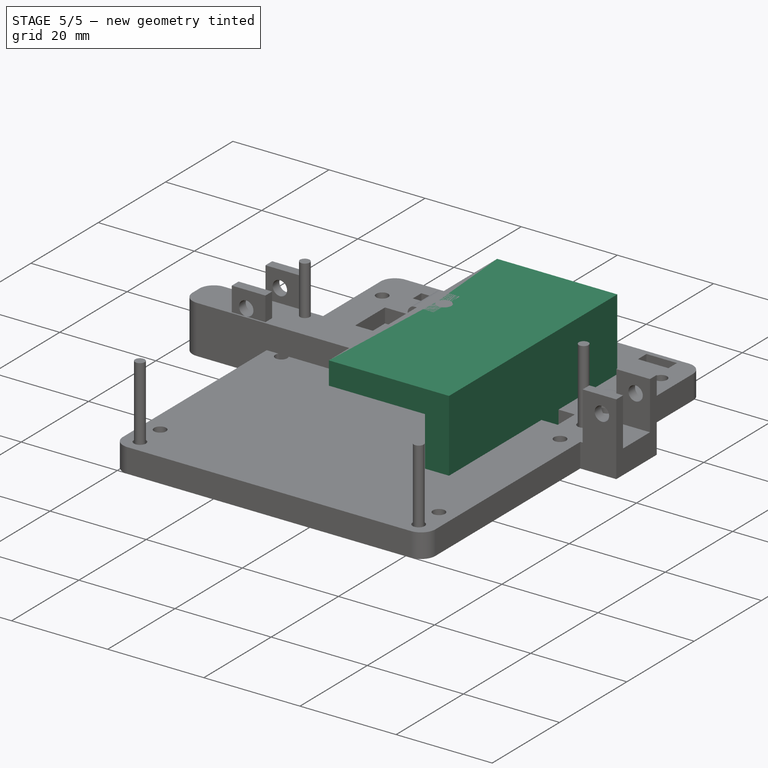
[diagram: stage 5 of 5 — iso view after this stage's code; geometry added in this stage tinted green]
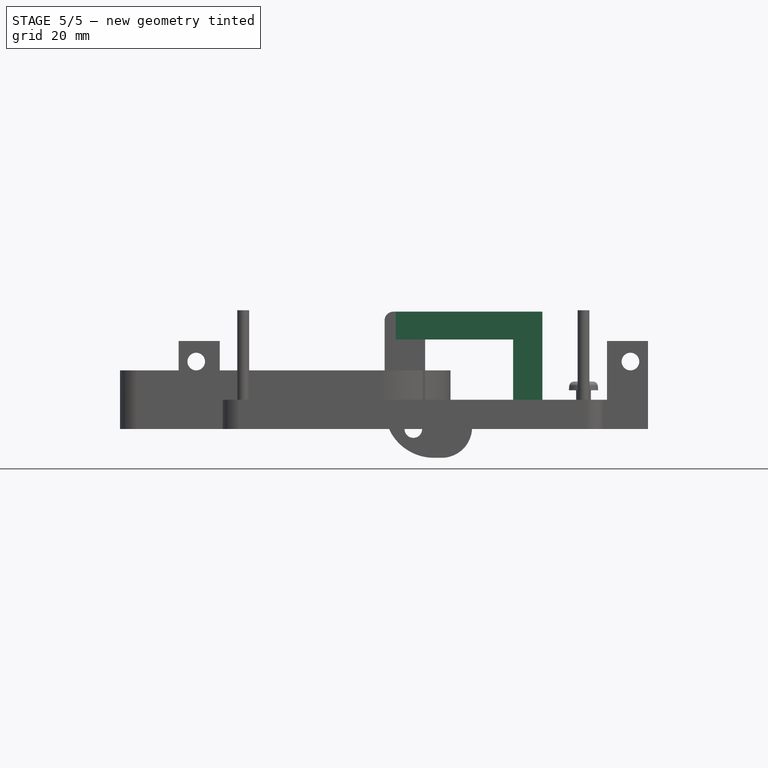
[diagram: stage 5 of 5 — front view after this stage's code; geometry added in this stage tinted green]
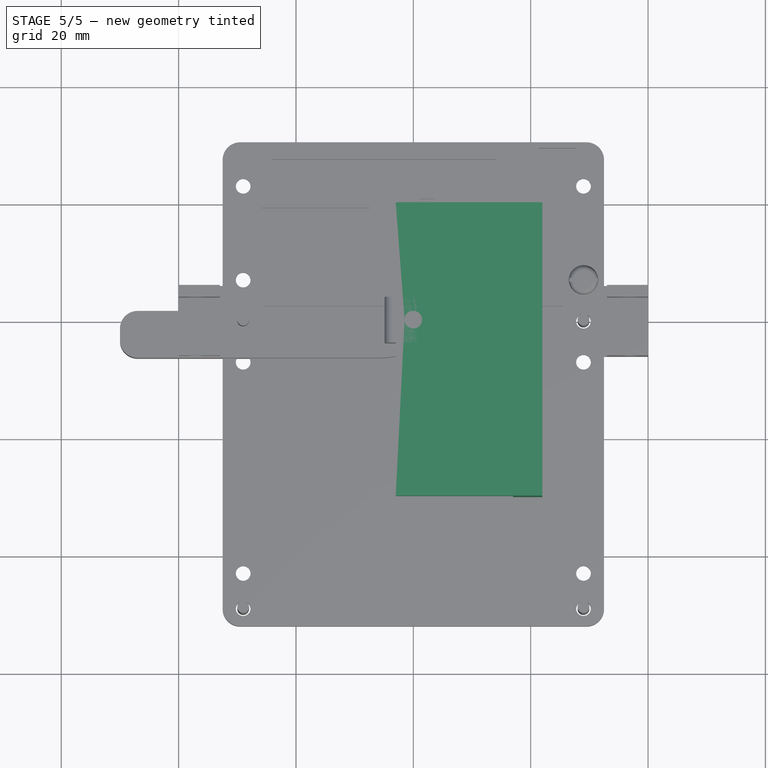
[diagram: stage 5 of 5 — top view after this stage's code; geometry added in this stage tinted green]
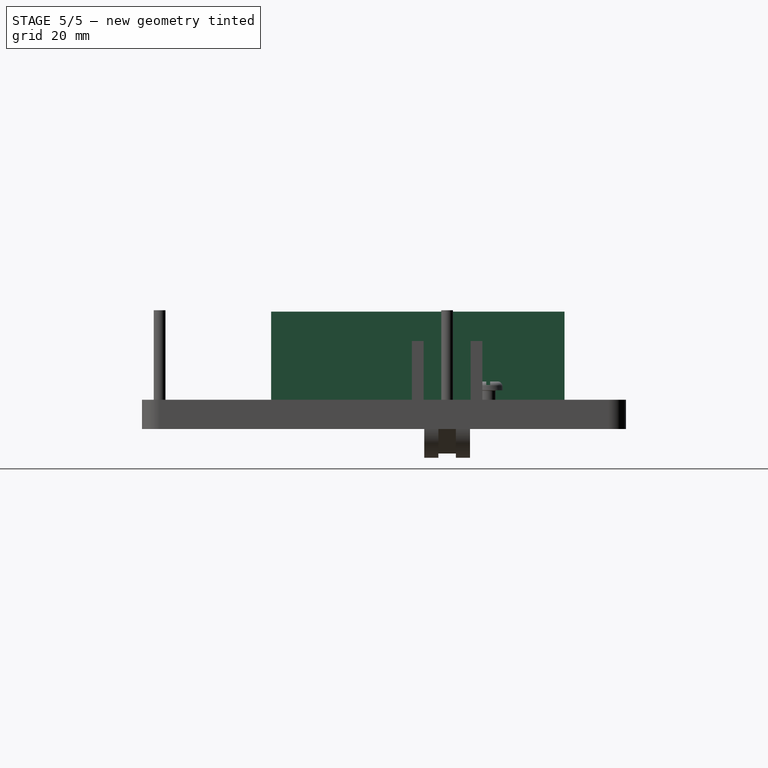
[diagram: stage 5 of 5 — right view after this stage's code; geometry added in this stage tinted green]
FEATURE [Sketcher::SketchObject] Sketch001
  MapMode = 5
  Support = -> [XY_Plane002]
  sketch-geometry (4):
    g0: LineSegment StartX=-3 StartY=20 StartZ=0 EndX=22 EndY=20 EndZ=0
    g1: LineSegment StartX=22 StartY=20 StartZ=0 EndX=22 EndY=-30 EndZ=0
    g2: LineSegment StartX=22 StartY=-30 StartZ=0 EndX=-3 EndY=-30 EndZ=0
    g3: LineSegment StartX=-3 StartY=-30 StartZ=0 EndX=-3 EndY=20 EndZ=0
  constraints (12):
    c: Coincident(g0,g1)
    c: Coincident(g1,g2)
    c: Coincident(g2,g3)
    c: Coincident(g3,g0)
    c: Horizontal(g0)
    c: Horizontal(g2)
    c: Vertical(g1)
    c: Vertical(g3)
    c: DistanceX(g0,g0) = 25
    c: DistanceY(g1,g1) = 50
    c: DistanceX(g0,g-1) = 3
    c: DistanceY(g-1,g0) = 20
FEATURE [PartDesign::Pad] Pad001
  Length = 20
  Length2 = 100
  Profile = -> Sketch001
  Type = 0
FEATURE [Sketcher::SketchObject] Sketch002
  MapMode = 5
  Placement = pos=(-3,0,0) rot=(0.57735,-0.57735,-0.57735;2.0944rad)
  Support = -> [Pad001]
  sketch-geometry (5):
    g0: LineSegment StartX=-22.5 StartY=15.25 StartZ=0 EndX=32.5 EndY=15.25 EndZ=0
    g1: LineSegment StartX=32.5 StartY=15.25 StartZ=0 EndX=32.5 EndY=4.75 EndZ=0
    g2: LineSegment StartX=32.5 StartY=4.75 StartZ=0 EndX=-22.5 EndY=4.75 EndZ=0
    g3: LineSegment StartX=-22.5 StartY=4.75 StartZ=0 EndX=-22.5 EndY=15.25 EndZ=0
    g4: GeomPoint X=-22.5 Y=10 Z=0
  constraints (13):
    c: Coincident(g0,g1)
    c: Coincident(g1,g2)
    c: Coincident(g2,g3)
    c: Coincident(g3,g0)
    c: Horizontal(g0)
    c: Horizontal(g2)
    c: Vertical(g1)
    c: Vertical(g3)
    c: DistanceY(g3,g3) = 10.5
    c: Symmetric(g0,g2,g4)
    c: DistanceY(g-1,g4) = 10
    c: DistanceX(g2,g2) = 55
    c: DistanceX(g2,g-1) = 22.5
FEATURE [PartDesign::Pocket] Pocket
  BaseFeature = -> Pad001
  Length = 20
  Length2 = 100
  Profile = -> Sketch002
  Type = 0
FEATURE [Sketcher::SketchObject] Sketch003
  MapMode = 5
  Placement = pos=(0,0,20) rot=(0,0,1;0rad)
  Support = -> [Pad001]
  sketch-geometry (1):
    g0: Circle CenterX=0 CenterY=0 CenterZ=0 NormalX=0 NormalY=0 NormalZ=1 AngleXU=0 Radius=1.5
  constraints (2):
    c: Coincident(g0,g-1)
    c: Diameter(g0) = 3
FEATURE [PartDesign::Pocket] Pocket001
  BaseFeature = -> Pocket
  Length = 5
  Length2 = 100
  Profile = -> Sketch003
  Type = 1
FEATURE [PartDesign::Body] Body001  label="Holder"
  Group = -> [Sketch001,Pad001,Sketch002,Pocket,Sketch003,Pocket001]
  Origin = -> Origin002
  Placement = pos=(0,0,-5) rot=(0,0,1;0rad)
  Tip = -> Pocket001
FEATURE [Sketcher::SketchObject] Sketch004
  MapMode = 5
  Placement = pos=(0,15,0) rot=(0,0.707107,0.707107;3.14159rad)
  Support = -> [Pad]
  sketch-geometry (4):
    g0: LineSegment StartX=-9 StartY=8 StartZ=0 EndX=4 EndY=8 EndZ=0
    g1: LineSegment StartX=4 StartY=8 StartZ=0 EndX=4 EndY=2 EndZ=0
    g2: LineSegment StartX=4 StartY=2 StartZ=0 EndX=-9 EndY=2 EndZ=0
    g3: LineSegment StartX=-9 StartY=2 StartZ=0 EndX=-9 EndY=8 EndZ=0
  constraints (12):
    c: Coincident(g0,g1)
    c: Coincident(g1,g2)
    c: Coincident(g2,g3)
    c: Coincident(g3,g0)
    c: Horizontal(g0)
    c: Horizontal(g2)
    c: Vertical(g1)
    c: Vertical(g3)
    c: DistanceY(g3,g3) = 6
    c: DistanceY(g-1,g2) = 2
    c: DistanceX(g2,g2) = 13
    c: DistanceX(g-1,g1) = 4
FEATURE [PartDesign::Pocket] Pocket002
  BaseFeature = -> Pad
  Length = 9
  Length2 = 100
  Profile = -> Sketch004
  Type = 0
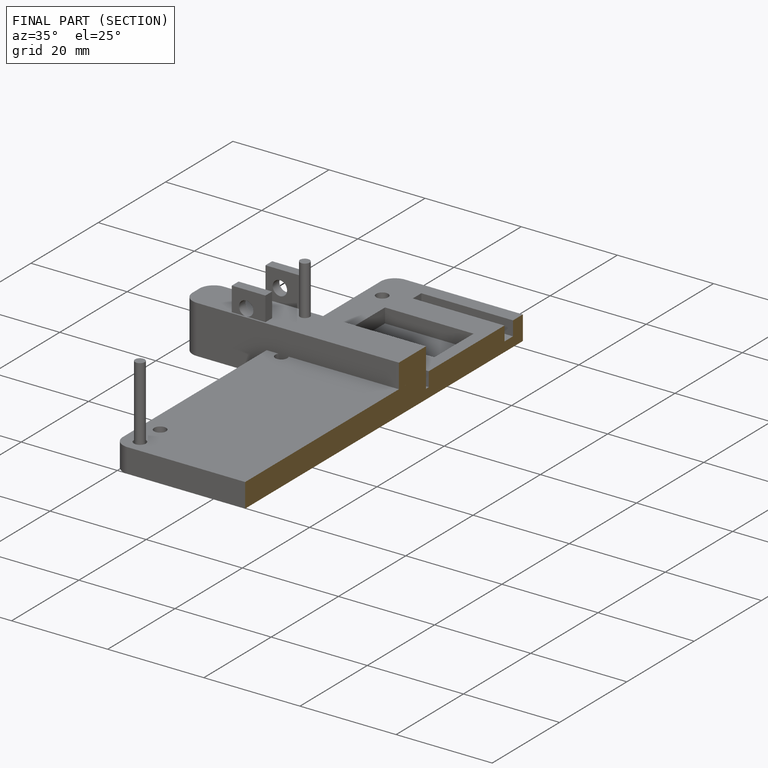
[diagram: finished part — half-section view (interior)]
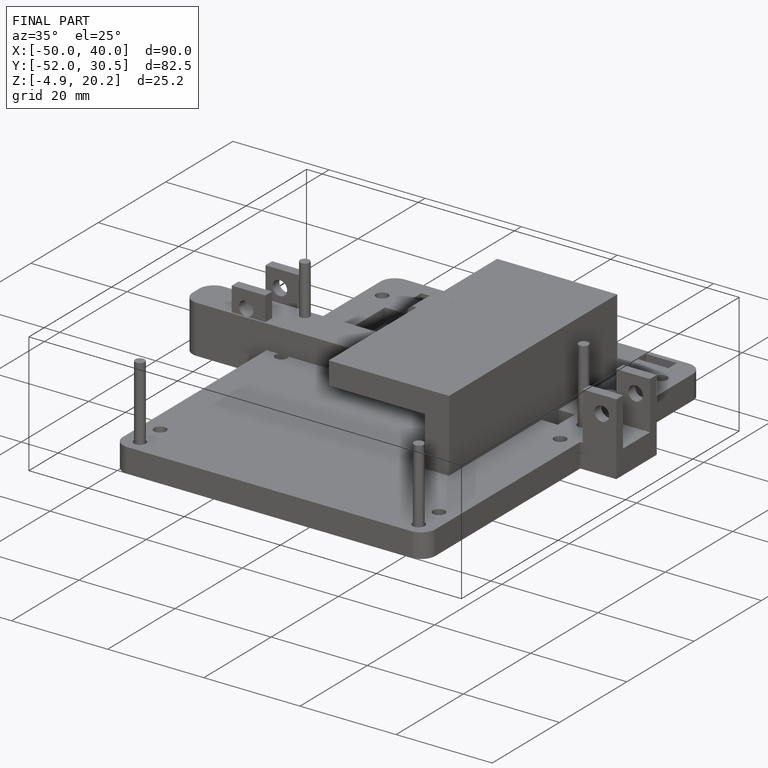
[diagram: finished part — iso view with bounding-box wireframe]
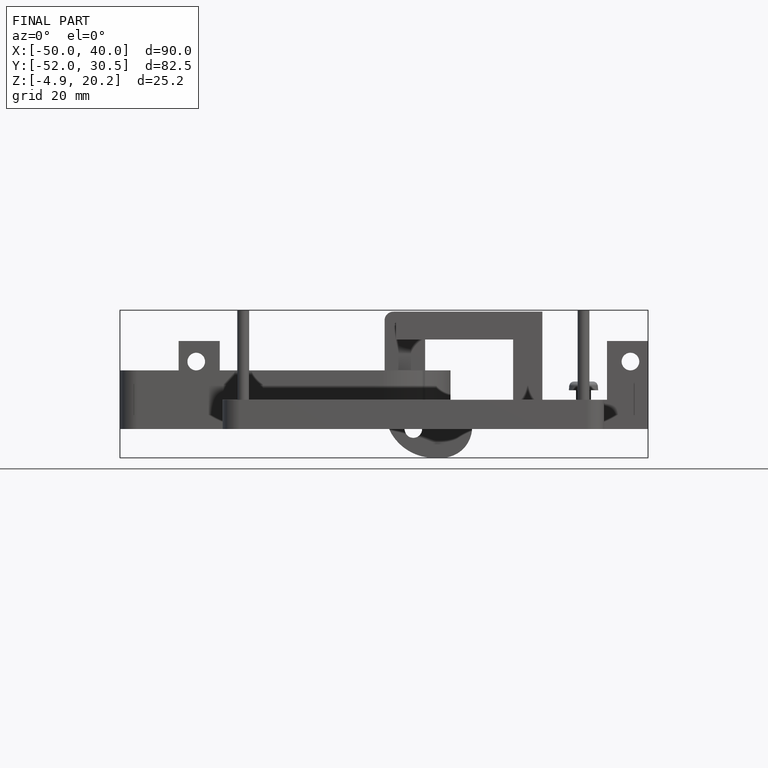
[diagram: finished part — front view with bounding-box wireframe]
